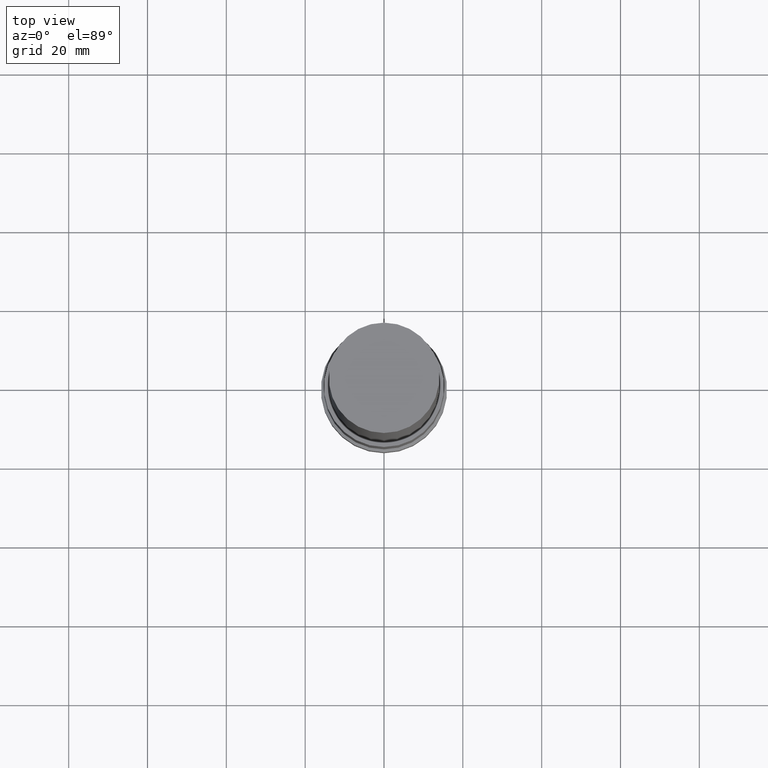
[diagram: clean part render]
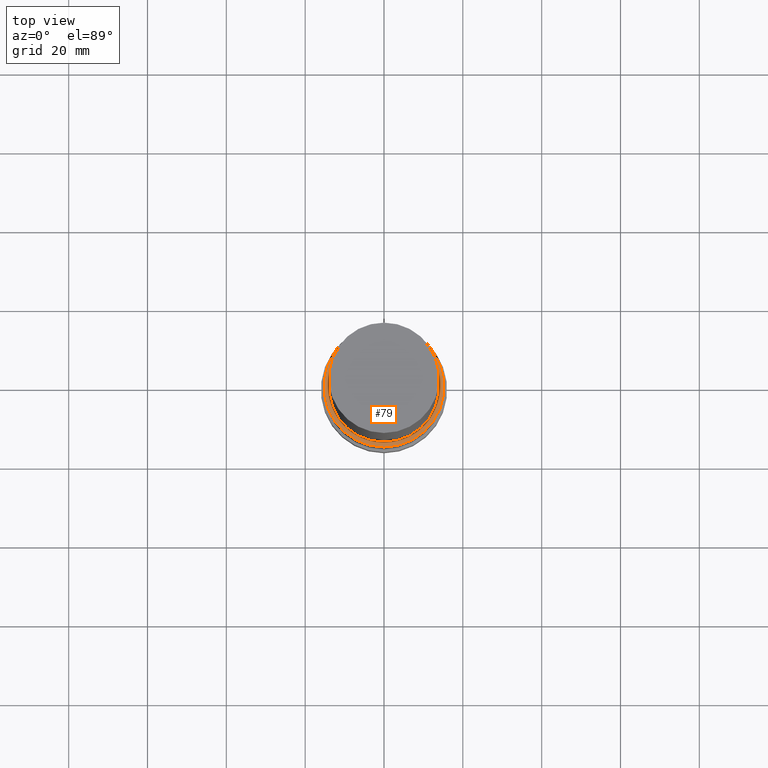
[diagram: same view with one face highlighted and labeled with its STEP entity id]
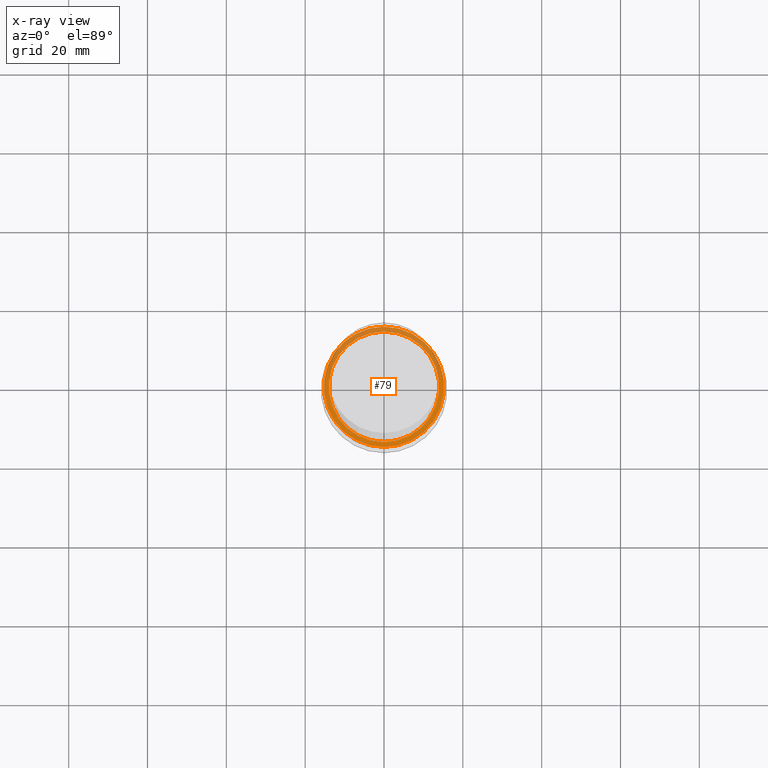
[diagram: x-ray of the same camera — body ghosted, the highlighted face saturated]
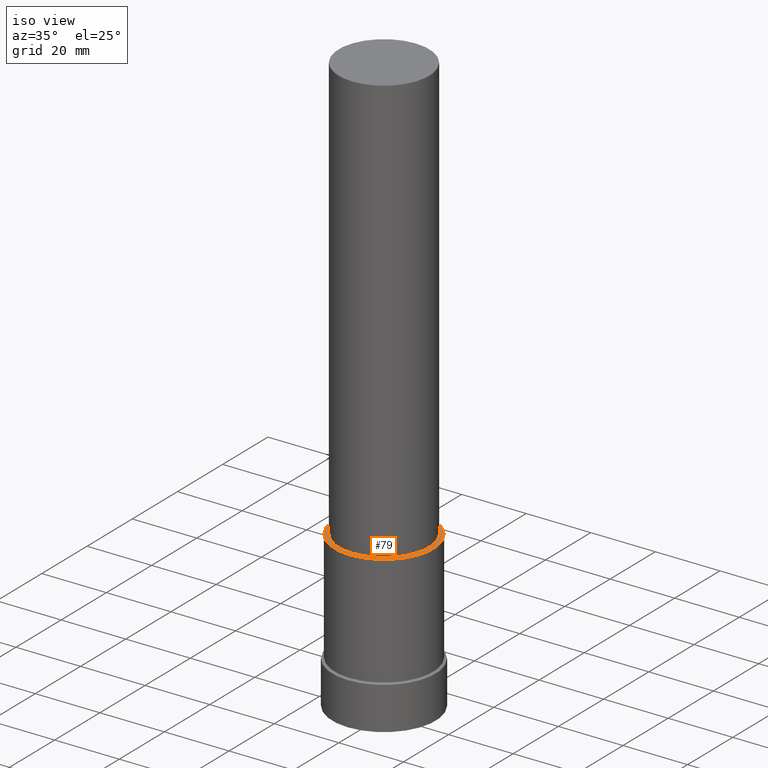
[diagram: same view with one face highlighted and labeled with its STEP entity id]
A machine part, top view. The second image highlights one B-rep face of the part: STEP entity #79.
The next image is the same camera in x-ray: the body ghosted, the highlighted face saturated — about 39% of this face is hidden behind the body in this view.
A second angle (iso view) of the same face is appended — the face is thin or edge-on in the first view.
In plain terms, the highlighted planar face has unit normal (-0, 0, 1).
Its self-contained STEP definition (entity closure, byte-faithful):
#79=ADVANCED_FACE('',(#94,#95),#96,.T.);
#94=FACE_BOUND('',#113,.T.);
#95=FACE_OUTER_BOUND('',#114,.T.);
#96=PLANE('',#115);
#113=EDGE_LOOP('',(#140));
#114=EDGE_LOOP('',(#141));
#115=AXIS2_PLACEMENT_3D('',#142,#143,#144);
#140=ORIENTED_EDGE('',*,*,#158,.F.);
#141=ORIENTED_EDGE('',*,*,#157,.T.);
#142=CARTESIAN_POINT('',(-2.93915231795244E-015,14.6250000000002,47.9999999999802));
#143=DIRECTION('',(-6.12323399573677E-017,6.3652382656164E-013,1.0));
#144=DIRECTION('',(3.89710161862561E-029,1.0,-6.3652382656164E-013));
#157=EDGE_CURVE('',#166,#166,#167,.T.);
#158=EDGE_CURVE('',#168,#168,#169,.T.);
#166=VERTEX_POINT('',#178);
#167=CIRCLE('',#179,15.2499999999997);
#168=VERTEX_POINT('',#180);
#169=CIRCLE('',#181,14.0000000000007);
#178=CARTESIAN_POINT('',(-2.93915231795241E-015,15.2499999999997,47.9999999999798));
#179=AXIS2_PLACEMENT_3D('',#193,#194,#195);
#180=CARTESIAN_POINT('',(-2.93915231795246E-015,14.0000000000007,47.9999999999806));
#181=AXIS2_PLACEMENT_3D('',#196,#197,#198);
#193=CARTESIAN_POINT('',(-2.93915231795241E-015,-3.46800743977915E-018,47.9999999999798));
#194=DIRECTION('',(-6.12323399573677E-017,-7.22501550150508E-020,1.0));
#195=DIRECTION('',(-4.83157677682374E-033,1.0,7.22501550150508E-020));
#196=CARTESIAN_POINT('',(-2.93915231795246E-015,-3.46800743977915E-018,47.9999999999806));
#197=DIRECTION('',(-6.12323399573677E-017,-7.22501549961279E-020,1.0));
#198=DIRECTION('',(-4.83157677682294E-033,1.0,7.22501549961279E-020));